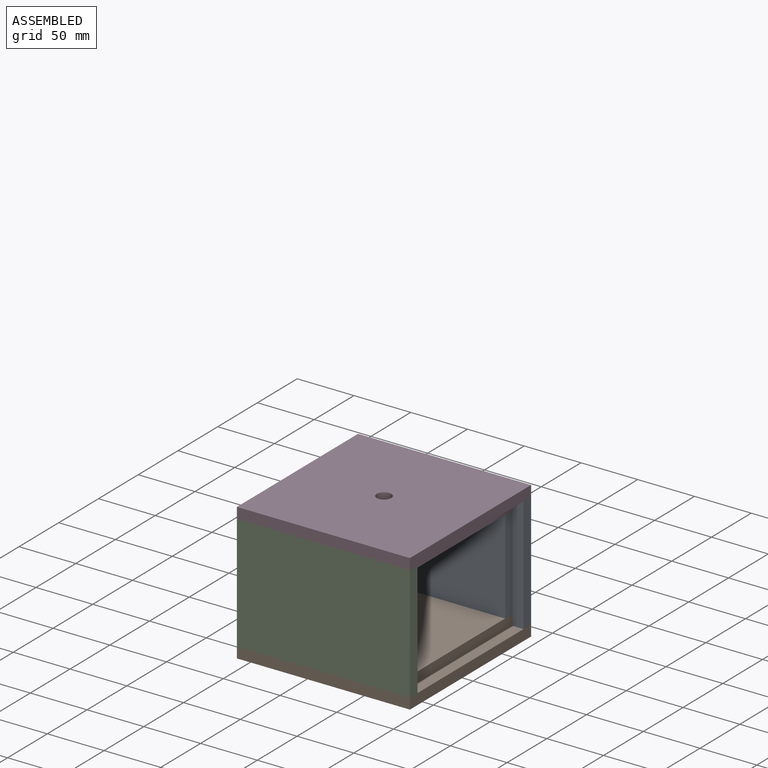
[diagram: assembled view]
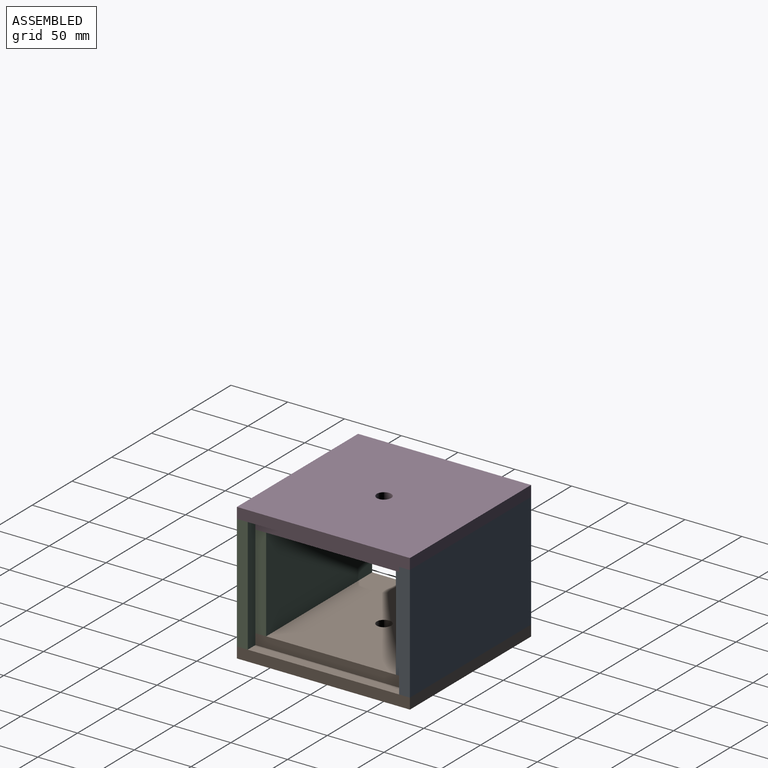
[diagram: assembled view, second angle]
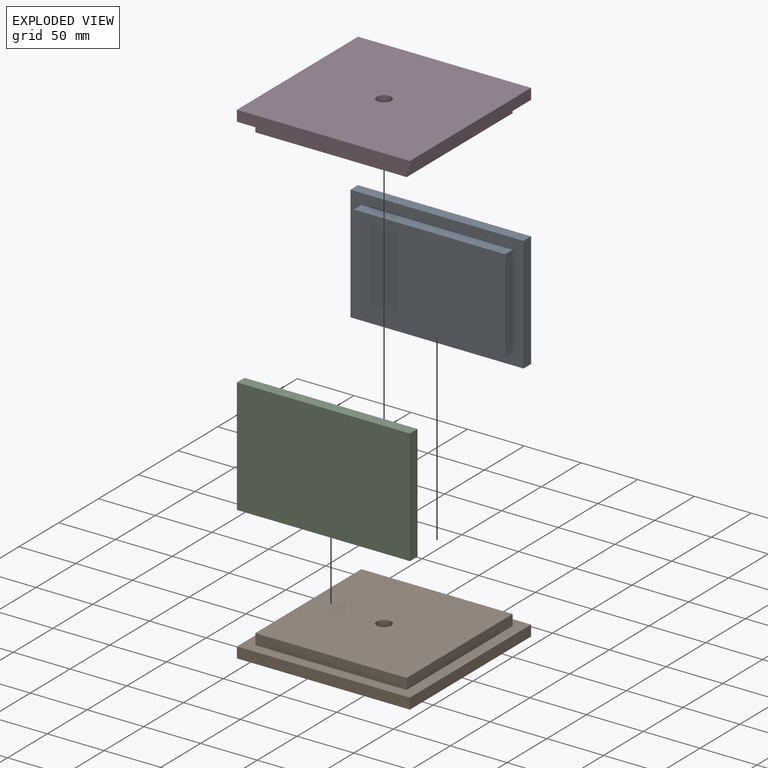
[diagram: exploded view]
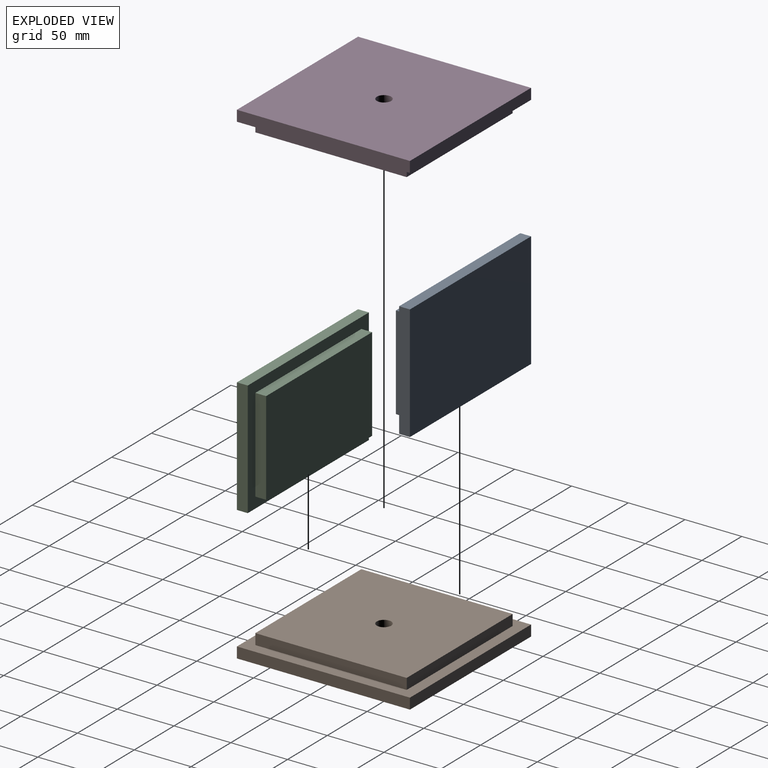
[diagram: exploded view, second angle]
ASSEMBLY  parts=4 mates=3
PART A: 11 faces, bbox 152.4x101.6x19.1 mm
  f0: plane 101.6x9.53mm, normal (1,0,0), area 967.7mm2, adj f1,f3,f4,f5
  f1: plane 152.4x9.53mm, normal (0,1,0), area 1451.6mm2, adj f0,f2,f4,f5
  f2: plane 101.6x9.53mm, normal (-1,0,0), area 967.7mm2, adj f1,f3,f4,f5
  f3: plane 152.4x9.53mm, normal (0,-1,0), area 1451.6mm2, adj f0,f2,f4,f5
  f4: plane 152.4x101.6mm, normal (0,0,1), area 4475.8mm2, adj f0,f1,f2,f3,f6,f7,f8,f9
  f5: plane 152.4x101.6mm, normal (0,0,-1), area 15483.8mm2, adj f0,f1,f2,f3
  f6: plane 82.55x9.53mm, normal (1,0,0), area 786.3mm2, adj f4,f7,f9,f10
  f7: plane 133.35x9.53mm, normal (0,1,0), area 1270.2mm2, adj f4,f6,f8,f10
  f8: plane 82.55x9.53mm, normal (-1,0,0), area 786.3mm2, adj f4,f7,f9,f10
  f9: plane 133.35x9.53mm, normal (0,-1,0), area 1270.2mm2, adj f4,f6,f8,f10
  f10: plane 133.35x82.55mm, normal (0,0,1), area 11008mm2, adj f6,f7,f8,f9
PART B: 12 faces, bbox 152.4x152.4x19.1 mm
  f0: plane 152.4x9.53mm, normal (0,1,0), area 1451.6mm2, adj f1,f3,f4,f5
  f1: plane 152.4x9.53mm, normal (-1,0,0), area 1451.6mm2, adj f0,f2,f4,f5
  f2: plane 152.4x9.53mm, normal (0,-1,0), area 1451.6mm2, adj f1,f3,f4,f5
  f3: plane 152.4x9.53mm, normal (1,0,0), area 1451.6mm2, adj f0,f2,f4,f5
  f4: plane 152.4x152.4mm, normal (0,0,1), area 23099.1mm2, adj f0,f1,f2,f3,f11
  f5: plane 152.4x152.4mm, normal (0,0,-1), area 5443.5mm2, adj f0,f1,f2,f3,f6,f7,f8,f9
  f6: plane 133.35x9.53mm, normal (0,-1,0), area 1270.2mm2, adj f5,f7,f9,f10
  f7: plane 133.35x9.53mm, normal (-1,0,0), area 1270.2mm2, adj f5,f6,f8,f10
  f8: plane 133.35x9.53mm, normal (0,1,0), area 1270.2mm2, adj f5,f7,f9,f10
  f9: plane 133.35x9.53mm, normal (1,0,0), area 1270.2mm2, adj f5,f6,f8,f10
  f10: plane 133.35x133.35mm, normal (0,0,-1), area 17655.5mm2, adj f6,f7,f8,f9,f11
  f11: cylinder r=6.35mm len=19.05mm, axis (0,0,1), area 760.1mm2, adj f4,f10
PART C: same geometry as A
PART D: same geometry as B
PLACE A rot(axis=(1,0,0),90deg) t=(140.34,49.4,-62.8)mm
PLACE B rot(axis=(0,-1,0),180deg) t=(140.34,-26.8,-113.6)mm
PLACE C rot(axis=(-1,0,0),90deg) t=(140.34,-103,-62.8)mm
PLACE D t=(140.34,-26.8,-12)mm
MATE planar A.f3 <-> B.f5  axis (0,0,-1) through (140.34,49.4,-113.6)mm
MATE planar D.f5 <-> A.f1  axis (0,0,-1) through (140.34,49.4,-12)mm
MATE planar B.f5 <-> C.f1  axis (0,0,1) through (140.34,-103,-113.6)mm
